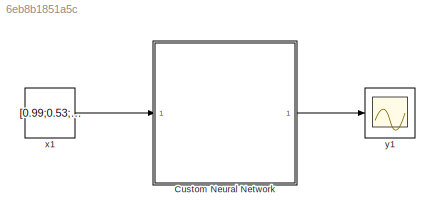
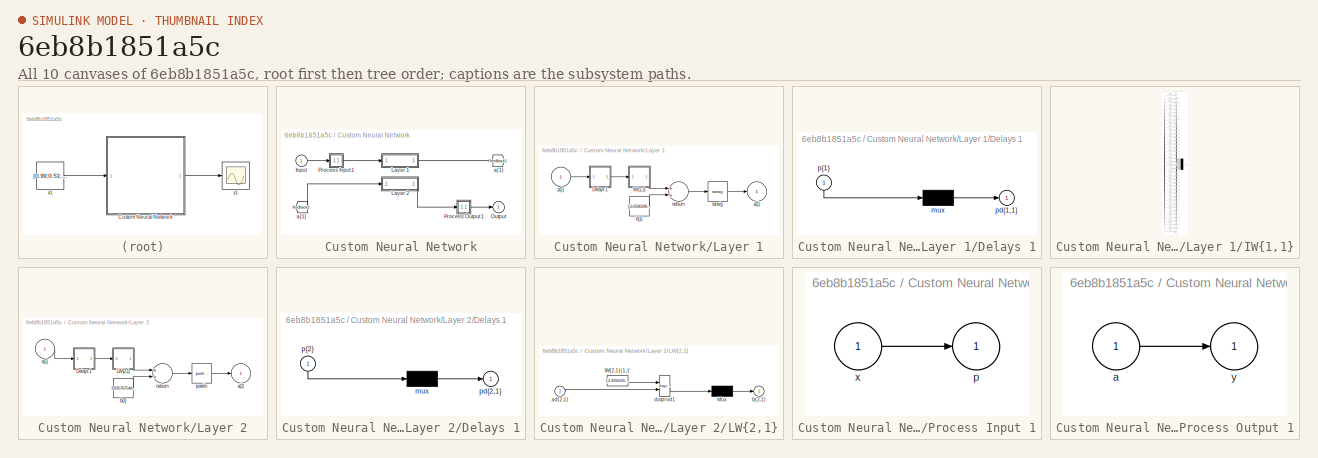
[diagram: thumbnail index - all 10 canvases of the model, root first then tree order]
MODEL slx_6eb8b1851a5c
KIND model
CONFIG AbsTol = auto
CONFIG EnableMultiTasking = off
CONFIG FixedStep = 0.1
CONFIG MaxStep = auto
CONFIG MinStep = auto
CONFIG RelTol = 1e-3
CONFIG SampleTimeConstraint = Unconstrained
CONFIG Solver = FixedStepAuto
CONFIG SolverName = FixedStepAuto
CONFIG StartTime = 0.0
CONFIG StopTime = 10.0
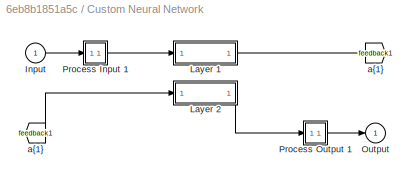
BLOCK [SubSystem] Custom Neural Network
  Ports = [1, 1]
  RequestExecContextInheritance = off
  Variant = off
BLOCK [From] Custom Neural Network/ a{1} 
  GotoTag = feedback1
BLOCK [Inport] Custom Neural Network/Input
  IconDisplay = Port number
  PortDimensions = 4
  SampleTime = 0.1
BLOCK [SubSystem] Custom Neural Network/Layer 1
  Ports = [1, 1]
  RequestExecContextInheritance = off
  Variant = off
BLOCK [SubSystem] Custom Neural Network/Layer 1/Delays 1
  Ports = [1, 1]
  RequestExecContextInheritance = off
  Variant = off
BLOCK [Mux] Custom Neural Network/Layer 1/Delays 1/mux
  Inputs = 1
  Ports = [1, 1]
BLOCK [Outport] Custom Neural Network/Layer 1/Delays 1/pd{1,1}
  IconDisplay = Port number
BLOCK [Inport] Custom Neural Network/Layer 1/Delays 1/p{1}
  IconDisplay = Port number
  PortDimensions = 4
  SampleTime = 0.1
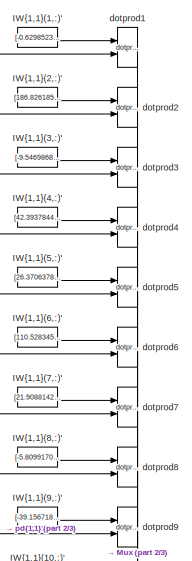
[diagram: Custom Neural Network/Layer 1/IW{1,1} - part 1/3, top center region]
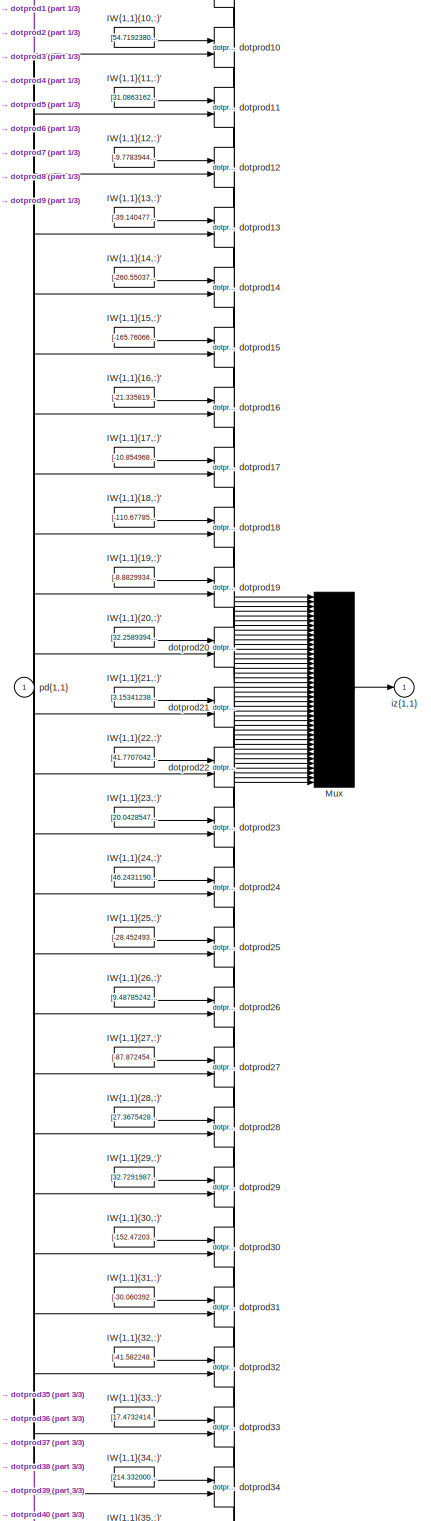
[diagram: Custom Neural Network/Layer 1/IW{1,1} - part 2/3, full width, middle band]
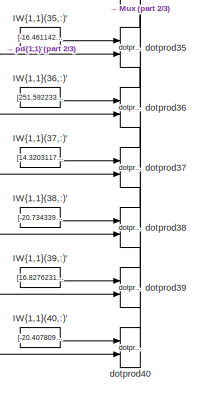
[diagram: Custom Neural Network/Layer 1/IW{1,1} - part 3/3, bottom center region]
BLOCK [SubSystem] Custom Neural Network/Layer 1/IW{1,1}
  Ports = [1, 1]
  RequestExecContextInheritance = off
  Variant = off
BLOCK [Constant] Custom Neural Network/Layer 1/IW{1,1}/IW{1,1}(1,:)'
  Value = [-0.629852348186918487016328072058968245983123779296875;45.29658200005228962936598691157996654510498046875;-25.699057271147754732965040602721273899078369140625;0.05584692999222586051732974965489120222628116607666015625]
BLOCK [Constant] Custom Neural Network/Layer 1/IW{1,1}/IW{1,1}(10,:)'
  Value = [54.719238067507177447623689658939838409423828125;-976.1035024694414232726558111608028411865234375;46.54047260972999566774888080544769763946533203125;24.2513484562311845138538046739995479583740234375]
BLOCK [Constant] Custom Neural Network/Layer 1/IW{1,1}/IW{1,1}(11,:)'
  Value = [31.086316247516581512400080100633203983306884765625;-37.22382365749347599148677545599639415740966796875;19.106692549619854304410182521678507328033447265625;-0.08724557630913039318887314266248722560703754425048828125]
BLOCK [Constant] Custom Neural Network/Layer 1/IW{1,1}/IW{1,1}(12,:)'
  Value = [-9.77839445317112421207639272324740886688232421875;26.2724407735658900264752446673810482025146484375;4.76160352546472864787574508227407932281494140625;0.0073084002268251659073516890430255443789064884185791015625]
BLOCK [Constant] Custom Neural Network/Layer 1/IW{1,1}/IW{1,1}(13,:)'
  Value = [-39.1404772762712269695839495398104190826416015625;-8.1803297408189745709705675835721194744110107421875;23.2907034776747110527139739133417606353759765625;0.02851175769769033474521080506747239269316196441650390625]
BLOCK [Constant] Custom Neural Network/Layer 1/IW{1,1}/IW{1,1}(14,:)'
  Value = [-260.55037751176814708742313086986541748046875;-499.98295048211804214588482864201068878173828125;-75.40494032499674403879907913506031036376953125;17.54539611034743984419037587940692901611328125]
BLOCK [Constant] Custom Neural Network/Layer 1/IW{1,1}/IW{1,1}(15,:)'
  Value = [-165.76066010027494712630868889391422271728515625;-205.7149120524145473609678447246551513671875;-7.42971334542427097602512731100432574748992919921875;-4.4738344005301957650999611360020935535430908203125]
BLOCK [Constant] Custom Neural Network/Layer 1/IW{1,1}/IW{1,1}(16,:)'
  Value = [-21.33581949550345058241873630322515964508056640625;14.0457364405426599063275716616772115230560302734375;-36.9395826025865261499347980134189128875732421875;0.07883772716823535253727328608874813653528690338134765625]
BLOCK [Constant] Custom Neural Network/Layer 1/IW{1,1}/IW{1,1}(17,:)'
  Value = [-10.8549684932247174629083019681274890899658203125;-25.9740773605059303008602000772953033447265625;36.89258665719984975339684751816093921661376953125;0.0195494742537429717910146820258887601085007190704345703125]
BLOCK [Constant] Custom Neural Network/Layer 1/IW{1,1}/IW{1,1}(18,:)'
  Value = [-110.6778555148316200984481838531792163848876953125;854.3561162140323403946240432560443878173828125;90.8973683914506409564637579023838043212890625;-2.816298773516325848476071769255213439464569091796875]
BLOCK [Constant] Custom Neural Network/Layer 1/IW{1,1}/IW{1,1}(19,:)'
  Value = [-8.8829934516064810168245458044111728668212890625;-33.566530201664733112920657731592655181884765625;-3.04666654827667304772376155597157776355743408203125;-0.135177453073702213970364027773030102252960205078125]
BLOCK [Constant] Custom Neural Network/Layer 1/IW{1,1}/IW{1,1}(2,:)'
  Value = [186.8261851433391029786434955894947052001953125;-298.69829731424437113673775456845760345458984375;73.7504248453553685749284341000020503997802734375;4.5892765747347112892384757287800312042236328125]
BLOCK [Constant] Custom Neural Network/Layer 1/IW{1,1}/IW{1,1}(20,:)'
  Value = [32.25893947173651810089722857810556888580322265625;36.7664101334751620697716134600341320037841796875;12.2860599518386859330121296807192265987396240234375;0.057154027121415561241146718884920119307935237884521484375]
BLOCK [Constant] Custom Neural Network/Layer 1/IW{1,1}/IW{1,1}(21,:)'
  Value = [3.15341238198225237709948487463407218456268310546875;-34.67690016862150770293737878091633319854736328125;14.0811973754771759814730103244073688983917236328125;-0.047941901507610414079341154547364567406475543975830078125]
BLOCK [Constant] Custom Neural Network/Layer 1/IW{1,1}/IW{1,1}(22,:)'
  Value = [41.77070420984301790667814202606678009033203125;20.755054800662744440842288895510137081146240234375;0.54115121005254451791444125774432905018329620361328125;0.077431661114533090195521936038858257234096527099609375]
BLOCK [Constant] Custom Neural Network/Layer 1/IW{1,1}/IW{1,1}(23,:)'
  Value = [20.042854714119041403819210245274007320404052734375;-39.896434288713322757757850922644138336181640625;6.02536653440303471285233172238804399967193603515625;-0.0721744404369498437912255894843838177621364593505859375]
BLOCK [Constant] Custom Neural Network/Layer 1/IW{1,1}/IW{1,1}(24,:)'
  Value = [46.24311903093212805515577201731503009796142578125;-18.167716131694451320299776853062212467193603515625;-22.76805788301579269727881182916462421417236328125;-0.041703172690547581080711125878224265761673450469970703125]
BLOCK [Constant] Custom Neural Network/Layer 1/IW{1,1}/IW{1,1}(25,:)'
  Value = [-28.452493098871240562175444210879504680633544921875;-39.7643465160674196567924809642136096954345703125;1.2793071231211570193408988416194915771484375;-0.0951308595129337908335998008624301292002201080322265625]
BLOCK [Constant] Custom Neural Network/Layer 1/IW{1,1}/IW{1,1}(26,:)'
  Value = [9.4878524250406304219040976022370159626007080078125;-8.868337043661664864657723228447139263153076171875;36.45407442769730010923012741841375827789306640625;0.09777354995456634390027517156340763904154300689697265625]
BLOCK [Constant] Custom Neural Network/Layer 1/IW{1,1}/IW{1,1}(27,:)'
  Value = [-87.872454734219928695893031544983386993408203125;28.74456551786160929395919083617627620697021484375;-141.0546976297749779405421577394008636474609375;-5.99578498808916560136594853247515857219696044921875]
BLOCK [Constant] Custom Neural Network/Layer 1/IW{1,1}/IW{1,1}(28,:)'
  Value = [27.36754280928375493431303766556084156036376953125;5.4229010249488087680447279126383364200592041015625;-44.87942190411609999500797130167484283447265625;-0.0887987148214237353993638635074603371322154998779296875]
BLOCK [Constant] Custom Neural Network/Layer 1/IW{1,1}/IW{1,1}(29,:)'
  Value = [32.72919871859021867521732929162681102752685546875;4.1407589008858298740278769400902092456817626953125;-37.76925766321875954645292949862778186798095703125;-0.02336710180513902612720045226524234749376773834228515625]
BLOCK [Constant] Custom Neural Network/Layer 1/IW{1,1}/IW{1,1}(3,:)'
  Value = [-9.546986891108250716797556378878653049468994140625;8.2641447806796097808046397403813898563385009765625;35.3030980812032595395066891796886920928955078125;0.1297078747648593155528118359143263660371303558349609375]
BLOCK [Constant] Custom Neural Network/Layer 1/IW{1,1}/IW{1,1}(30,:)'
  Value = [-152.4720316913325177665683440864086151123046875;-21.27243707408337769493300584144890308380126953125;-145.597703573626176876132376492023468017578125;-7.02840850012440920835388169507496058940887451171875]
BLOCK [Constant] Custom Neural Network/Layer 1/IW{1,1}/IW{1,1}(31,:)'
  Value = [-30.0603928748578113072653650306165218353271484375;16.836484682167142779007917852140963077545166015625;-5.79002107800427712192004037206061184406280517578125;0.03246418351834583215786977916650357656180858612060546875]
BLOCK [Constant] Custom Neural Network/Layer 1/IW{1,1}/IW{1,1}(32,:)'
  Value = [-41.58224853882247629144330858252942562103271484375;44.954077298239468518659123219549655914306640625;-0.93885945692047656496725949182291515171527862548828125;0.096057556854340642171763420265051536262035369873046875]
BLOCK [Constant] Custom Neural Network/Layer 1/IW{1,1}/IW{1,1}(33,:)'
  Value = [17.473241405774359691349673084914684295654296875;18.2454806470429531373156351037323474884033203125;-14.4942630929501898862099551479332149028778076171875;0.0440459317175901088337042210696381516754627227783203125]
BLOCK [Constant] Custom Neural Network/Layer 1/IW{1,1}/IW{1,1}(34,:)'
  Value = [214.332000309754818090368644334375858306884765625;-75.91262075174518031417392194271087646484375;132.84813810743844442185945808887481689453125;-5.294122412468194482926264754496514797210693359375]
BLOCK [Constant] Custom Neural Network/Layer 1/IW{1,1}/IW{1,1}(35,:)'
  Value = [-16.461142512404631332856297376565635204315185546875;-32.87454137539136667101047351025044918060302734375;17.588866960792440607974640442989766597747802734375;-0.00054134814073396124965709130805180393508635461330413818359375]
BLOCK [Constant] Custom Neural Network/Layer 1/IW{1,1}/IW{1,1}(36,:)'
  Value = [251.592233872888670020984136499464511871337890625;131.284087979236943510841228999197483062744140625;170.3682635492996269022114574909210205078125;-8.103308407059170548336624051444232463836669921875]
BLOCK [Constant] Custom Neural Network/Layer 1/IW{1,1}/IW{1,1}(37,:)'
  Value = [14.3203117577322842635112465359270572662353515625;-17.296595679176942184085419285111129283905029296875;35.42648888858797562306790496222674846649169921875;-0.06770266207771553912397877184048411436378955841064453125]
BLOCK [Constant] Custom Neural Network/Layer 1/IW{1,1}/IW{1,1}(38,:)'
  Value = [-20.734339869403445533180274651385843753814697265625;-23.074843976248274657336878590285778045654296875;15.6799057598324367290842928923666477203369140625;-0.01230762385719559072472240046636215993203222751617431640625]
BLOCK [Constant] Custom Neural Network/Layer 1/IW{1,1}/IW{1,1}(39,:)'
  Value = [16.82762313245719809629008523188531398773193359375;10.255739306955678813437771168537437915802001953125;-43.47548794711452302408360992558300495147705078125;0.0417039124664538574105421275817207060754299163818359375]
BLOCK [Constant] Custom Neural Network/Layer 1/IW{1,1}/IW{1,1}(4,:)'
  Value = [42.39378448554932532488237484358251094818115234375;-10.463895606344042477076072827912867069244384765625;-20.745054990878909251250661327503621578216552734375;-0.09906250695340727829840687945761601440608501434326171875]
BLOCK [Constant] Custom Neural Network/Layer 1/IW{1,1}/IW{1,1}(40,:)'
  Value = [-20.407809086202558290779052185826003551483154296875;-4.11877982214880322686667568632401525974273681640625;-38.50531111231358494251253432594239711761474609375;-0.0204436431283134302516746316769058466888964176177978515625]
BLOCK [Constant] Custom Neural Network/Layer 1/IW{1,1}/IW{1,1}(5,:)'
  Value = [26.370637867567477741204129415564239025115966796875;1.6169942102160483887729469643090851604938507080078125;5.231514661987187508884744602255523204803466796875;-0.024836300969492040857655723584684892557561397552490234375]
BLOCK [Constant] Custom Neural Network/Layer 1/IW{1,1}/IW{1,1}(6,:)'
  Value = [110.5283451774692053959370241500437259674072265625;417.88081619853852544110850431025028228759765625;-6.87679294793700268684233378735370934009552001953125;-2.43854981322127262188814711407758295536041259765625]
BLOCK [Constant] Custom Neural Network/Layer 1/IW{1,1}/IW{1,1}(7,:)'
  Value = [21.9088142168723294389565126039087772369384765625;-28.193431581696973609041378949768841266632080078125;41.4158139631084480924982926808297634124755859375;0.07262859243462160829807316986261866986751556396484375]
BLOCK [Constant] Custom Neural Network/Layer 1/IW{1,1}/IW{1,1}(8,:)'
  Value = [-5.8099170388617498161920593702234327793121337890625;37.96984783225667570150108076632022857666015625;33.88148592259343416799310944043099880218505859375;-0.004334336184150358421696136446144009823910892009735107421875]
BLOCK [Constant] Custom Neural Network/Layer 1/IW{1,1}/IW{1,1}(9,:)'
  Value = [-39.15671877753407414957109722308814525604248046875;-2.72713605031499373154701970634050667285919189453125;-30.403782442818535258766132756136357784271240234375;0.01278851303987849595544812331127104698680341243743896484375]
BLOCK [Mux] Custom Neural Network/Layer 1/IW{1,1}/Mux
  Inputs = 40
  Ports = [40, 1]
BLOCK [Reference] Custom Neural Network/Layer 1/IW{1,1}/dotprod1  REF=neural/Weight Functions/dotprod
  Ports = [2, 1]
  SourceBlock = neural/Weight Functions/dotprod
  SourceProductBaseCode = NN
  SourceProductName = Neural Network Toolbox
  SourceType = DOTPROD
BLOCK [Reference] Custom Neural Network/Layer 1/IW{1,1}/dotprod10  REF=neural/Weight Functions/dotprod
  Ports = [2, 1]
  SourceBlock = neural/Weight Functions/dotprod
  SourceProductBaseCode = NN
  SourceProductName = Neural Network Toolbox
  SourceType = DOTPROD
BLOCK [Reference] Custom Neural Network/Layer 1/IW{1,1}/dotprod11  REF=neural/Weight Functions/dotprod
  Ports = [2, 1]
  SourceBlock = neural/Weight Functions/dotprod
  SourceProductBaseCode = NN
  SourceProductName = Neural Network Toolbox
  SourceType = DOTPROD
BLOCK [Reference] Custom Neural Network/Layer 1/IW{1,1}/dotprod12  REF=neural/Weight Functions/dotprod
  Ports = [2, 1]
  SourceBlock = neural/Weight Functions/dotprod
  SourceProductBaseCode = NN
  SourceProductName = Neural Network Toolbox
  SourceType = DOTPROD
BLOCK [Reference] Custom Neural Network/Layer 1/IW{1,1}/dotprod13  REF=neural/Weight Functions/dotprod
  Ports = [2, 1]
  SourceBlock = neural/Weight Functions/dotprod
  SourceProductBaseCode = NN
  SourceProductName = Neural Network Toolbox
  SourceType = DOTPROD
BLOCK [Reference] Custom Neural Network/Layer 1/IW{1,1}/dotprod14  REF=neural/Weight Functions/dotprod
  Ports = [2, 1]
  SourceBlock = neural/Weight Functions/dotprod
  SourceProductBaseCode = NN
  SourceProductName = Neural Network Toolbox
  SourceType = DOTPROD
BLOCK [Reference] Custom Neural Network/Layer 1/IW{1,1}/dotprod15  REF=neural/Weight Functions/dotprod
  Ports = [2, 1]
  SourceBlock = neural/Weight Functions/dotprod
  SourceProductBaseCode = NN
  SourceProductName = Neural Network Toolbox
  SourceType = DOTPROD
BLOCK [Reference] Custom Neural Network/Layer 1/IW{1,1}/dotprod16  REF=neural/Weight Functions/dotprod
  Ports = [2, 1]
  SourceBlock = neural/Weight Functions/dotprod
  SourceProductBaseCode = NN
  SourceProductName = Neural Network Toolbox
  SourceType = DOTPROD
BLOCK [Reference] Custom Neural Network/Layer 1/IW{1,1}/dotprod17  REF=neural/Weight Functions/dotprod
  Ports = [2, 1]
  SourceBlock = neural/Weight Functions/dotprod
  SourceProductBaseCode = NN
  SourceProductName = Neural Network Toolbox
  SourceType = DOTPROD
BLOCK [Reference] Custom Neural Network/Layer 1/IW{1,1}/dotprod18  REF=neural/Weight Functions/dotprod
  Ports = [2, 1]
  SourceBlock = neural/Weight Functions/dotprod
  SourceProductBaseCode = NN
  SourceProductName = Neural Network Toolbox
  SourceType = DOTPROD
BLOCK [Reference] Custom Neural Network/Layer 1/IW{1,1}/dotprod19  REF=neural/Weight Functions/dotprod
  Ports = [2, 1]
  SourceBlock = neural/Weight Functions/dotprod
  SourceProductBaseCode = NN
  SourceProductName = Neural Network Toolbox
  SourceType = DOTPROD
BLOCK [Reference] Custom Neural Network/Layer 1/IW{1,1}/dotprod2  REF=neural/Weight Functions/dotprod
  Ports = [2, 1]
  SourceBlock = neural/Weight Functions/dotprod
  SourceProductBaseCode = NN
  SourceProductName = Neural Network Toolbox
  SourceType = DOTPROD
BLOCK [Reference] Custom Neural Network/Layer 1/IW{1,1}/dotprod20  REF=neural/Weight Functions/dotprod
  Ports = [2, 1]
  SourceBlock = neural/Weight Functions/dotprod
  SourceProductBaseCode = NN
  SourceProductName = Neural Network Toolbox
  SourceType = DOTPROD
BLOCK [Reference] Custom Neural Network/Layer 1/IW{1,1}/dotprod21  REF=neural/Weight Functions/dotprod
  Ports = [2, 1]
  SourceBlock = neural/Weight Functions/dotprod
  SourceProductBaseCode = NN
  SourceProductName = Neural Network Toolbox
  SourceType = DOTPROD
BLOCK [Reference] Custom Neural Network/Layer 1/IW{1,1}/dotprod22  REF=neural/Weight Functions/dotprod
  Ports = [2, 1]
  SourceBlock = neural/Weight Functions/dotprod
  SourceProductBaseCode = NN
  SourceProductName = Neural Network Toolbox
  SourceType = DOTPROD
BLOCK [Reference] Custom Neural Network/Layer 1/IW{1,1}/dotprod23  REF=neural/Weight Functions/dotprod
  Ports = [2, 1]
  SourceBlock = neural/Weight Functions/dotprod
  SourceProductBaseCode = NN
  SourceProductName = Neural Network Toolbox
  SourceType = DOTPROD
BLOCK [Reference] Custom Neural Network/Layer 1/IW{1,1}/dotprod24  REF=neural/Weight Functions/dotprod
  Ports = [2, 1]
  SourceBlock = neural/Weight Functions/dotprod
  SourceProductBaseCode = NN
  SourceProductName = Neural Network Toolbox
  SourceType = DOTPROD
BLOCK [Reference] Custom Neural Network/Layer 1/IW{1,1}/dotprod25  REF=neural/Weight Functions/dotprod
  Ports = [2, 1]
  SourceBlock = neural/Weight Functions/dotprod
  SourceProductBaseCode = NN
  SourceProductName = Neural Network Toolbox
  SourceType = DOTPROD
BLOCK [Reference] Custom Neural Network/Layer 1/IW{1,1}/dotprod26  REF=neural/Weight Functions/dotprod
  Ports = [2, 1]
  SourceBlock = neural/Weight Functions/dotprod
  SourceProductBaseCode = NN
  SourceProductName = Neural Network Toolbox
  SourceType = DOTPROD
BLOCK [Reference] Custom Neural Network/Layer 1/IW{1,1}/dotprod27  REF=neural/Weight Functions/dotprod
  Ports = [2, 1]
  SourceBlock = neural/Weight Functions/dotprod
  SourceProductBaseCode = NN
  SourceProductName = Neural Network Toolbox
  SourceType = DOTPROD
BLOCK [Reference] Custom Neural Network/Layer 1/IW{1,1}/dotprod28  REF=neural/Weight Functions/dotprod
  Ports = [2, 1]
  SourceBlock = neural/Weight Functions/dotprod
  SourceProductBaseCode = NN
  SourceProductName = Neural Network Toolbox
  SourceType = DOTPROD
BLOCK [Reference] Custom Neural Network/Layer 1/IW{1,1}/dotprod29  REF=neural/Weight Functions/dotprod
  Ports = [2, 1]
  SourceBlock = neural/Weight Functions/dotprod
  SourceProductBaseCode = NN
  SourceProductName = Neural Network Toolbox
  SourceType = DOTPROD
BLOCK [Reference] Custom Neural Network/Layer 1/IW{1,1}/dotprod3  REF=neural/Weight Functions/dotprod
  Ports = [2, 1]
  SourceBlock = neural/Weight Functions/dotprod
  SourceProductBaseCode = NN
  SourceProductName = Neural Network Toolbox
  SourceType = DOTPROD
BLOCK [Reference] Custom Neural Network/Layer 1/IW{1,1}/dotprod30  REF=neural/Weight Functions/dotprod
  Ports = [2, 1]
  SourceBlock = neural/Weight Functions/dotprod
  SourceProductBaseCode = NN
  SourceProductName = Neural Network Toolbox
  SourceType = DOTPROD
BLOCK [Reference] Custom Neural Network/Layer 1/IW{1,1}/dotprod31  REF=neural/Weight Functions/dotprod
  Ports = [2, 1]
  SourceBlock = neural/Weight Functions/dotprod
  SourceProductBaseCode = NN
  SourceProductName = Neural Network Toolbox
  SourceType = DOTPROD
BLOCK [Reference] Custom Neural Network/Layer 1/IW{1,1}/dotprod32  REF=neural/Weight Functions/dotprod
  Ports = [2, 1]
  SourceBlock = neural/Weight Functions/dotprod
  SourceProductBaseCode = NN
  SourceProductName = Neural Network Toolbox
  SourceType = DOTPROD
BLOCK [Reference] Custom Neural Network/Layer 1/IW{1,1}/dotprod33  REF=neural/Weight Functions/dotprod
  Ports = [2, 1]
  SourceBlock = neural/Weight Functions/dotprod
  SourceProductBaseCode = NN
  SourceProductName = Neural Network Toolbox
  SourceType = DOTPROD
BLOCK [Reference] Custom Neural Network/Layer 1/IW{1,1}/dotprod34  REF=neural/Weight Functions/dotprod
  Ports = [2, 1]
  SourceBlock = neural/Weight Functions/dotprod
  SourceProductBaseCode = NN
  SourceProductName = Neural Network Toolbox
  SourceType = DOTPROD
BLOCK [Reference] Custom Neural Network/Layer 1/IW{1,1}/dotprod35  REF=neural/Weight Functions/dotprod
  Ports = [2, 1]
  SourceBlock = neural/Weight Functions/dotprod
  SourceProductBaseCode = NN
  SourceProductName = Neural Network Toolbox
  SourceType = DOTPROD
BLOCK [Reference] Custom Neural Network/Layer 1/IW{1,1}/dotprod36  REF=neural/Weight Functions/dotprod
  Ports = [2, 1]
  SourceBlock = neural/Weight Functions/dotprod
  SourceProductBaseCode = NN
  SourceProductName = Neural Network Toolbox
  SourceType = DOTPROD
BLOCK [Reference] Custom Neural Network/Layer 1/IW{1,1}/dotprod37  REF=neural/Weight Functions/dotprod
  Ports = [2, 1]
  SourceBlock = neural/Weight Functions/dotprod
  SourceProductBaseCode = NN
  SourceProductName = Neural Network Toolbox
  SourceType = DOTPROD
BLOCK [Reference] Custom Neural Network/Layer 1/IW{1,1}/dotprod38  REF=neural/Weight Functions/dotprod
  Ports = [2, 1]
  SourceBlock = neural/Weight Functions/dotprod
  SourceProductBaseCode = NN
  SourceProductName = Neural Network Toolbox
  SourceType = DOTPROD
BLOCK [Reference] Custom Neural Network/Layer 1/IW{1,1}/dotprod39  REF=neural/Weight Functions/dotprod
  Ports = [2, 1]
  SourceBlock = neural/Weight Functions/dotprod
  SourceProductBaseCode = NN
  SourceProductName = Neural Network Toolbox
  SourceType = DOTPROD
BLOCK [Reference] Custom Neural Network/Layer 1/IW{1,1}/dotprod4  REF=neural/Weight Functions/dotprod
  Ports = [2, 1]
  SourceBlock = neural/Weight Functions/dotprod
  SourceProductBaseCode = NN
  SourceProductName = Neural Network Toolbox
  SourceType = DOTPROD
BLOCK [Reference] Custom Neural Network/Layer 1/IW{1,1}/dotprod40  REF=neural/Weight Functions/dotprod
  Ports = [2, 1]
  SourceBlock = neural/Weight Functions/dotprod
  SourceProductBaseCode = NN
  SourceProductName = Neural Network Toolbox
  SourceType = DOTPROD
BLOCK [Reference] Custom Neural Network/Layer 1/IW{1,1}/dotprod5  REF=neural/Weight Functions/dotprod
  Ports = [2, 1]
  SourceBlock = neural/Weight Functions/dotprod
  SourceProductBaseCode = NN
  SourceProductName = Neural Network Toolbox
  SourceType = DOTPROD
BLOCK [Reference] Custom Neural Network/Layer 1/IW{1,1}/dotprod6  REF=neural/Weight Functions/dotprod
  Ports = [2, 1]
  SourceBlock = neural/Weight Functions/dotprod
  SourceProductBaseCode = NN
  SourceProductName = Neural Network Toolbox
  SourceType = DOTPROD
BLOCK [Reference] Custom Neural Network/Layer 1/IW{1,1}/dotprod7  REF=neural/Weight Functions/dotprod
  Ports = [2, 1]
  SourceBlock = neural/Weight Functions/dotprod
  SourceProductBaseCode = NN
  SourceProductName = Neural Network Toolbox
  SourceType = DOTPROD
BLOCK [Reference] Custom Neural Network/Layer 1/IW{1,1}/dotprod8  REF=neural/Weight Functions/dotprod
  Ports = [2, 1]
  SourceBlock = neural/Weight Functions/dotprod
  SourceProductBaseCode = NN
  SourceProductName = Neural Network Toolbox
  SourceType = DOTPROD
BLOCK [Reference] Custom Neural Network/Layer 1/IW{1,1}/dotprod9  REF=neural/Weight Functions/dotprod
  Ports = [2, 1]
  SourceBlock = neural/Weight Functions/dotprod
  SourceProductBaseCode = NN
  SourceProductName = Neural Network Toolbox
  SourceType = DOTPROD
BLOCK [Outport] Custom Neural Network/Layer 1/IW{1,1}/iz{1,1}
  IconDisplay = Port number
BLOCK [Inport] Custom Neural Network/Layer 1/IW{1,1}/pd{1,1}
  IconDisplay = Port number
  PortDimensions = 4
  SampleTime = 0.1
BLOCK [Outport] Custom Neural Network/Layer 1/a{1}
  IconDisplay = Port number
  InitialOutput = [0;0;0;0;0;0;0;0;0;0;0;0;0;0;0;0;0;0;0;0;0;0;0;0;0;0;0;0;0;0;0;0;0;0;0;0;0;0;0;0]
BLOCK [Constant] Custom Neural Network/Layer 1/b{1}
  Value = [-3.059033689141189338300819144933484494686126708984375;-12.796854228007617848561494611203670501708984375;3.136178304820653739426461470429785549640655517578125;-3.8319812999351796634073252789676189422607421875;-0.804424117018461171113585805869661271572113037109375;-19.365588937340145747612041304819285869598388671875;-2.8788261380702362401962091098539531230926513671875;1.561681038455536629783182434...<+1755ch>
BLOCK [Sum] Custom Neural Network/Layer 1/netsum
  Inputs = 2
  Ports = [2, 1]
BLOCK [Inport] Custom Neural Network/Layer 1/p{1}
  IconDisplay = Port number
  PortDimensions = 4
  SampleTime = 0.1
BLOCK [Reference] Custom Neural Network/Layer 1/tansig  REF=neural/Transfer Functions/tansig
  Ports = [1, 1]
  SourceBlock = neural/Transfer Functions/tansig
  SourceProductBaseCode = NN
  SourceProductName = Neural Network Toolbox
  SourceType = TANSIG
BLOCK [SubSystem] Custom Neural Network/Layer 2
  Ports = [1, 1]
  RequestExecContextInheritance = off
  Variant = off
BLOCK [SubSystem] Custom Neural Network/Layer 2/Delays 1
  Ports = [1, 1]
  RequestExecContextInheritance = off
  Variant = off
BLOCK [Mux] Custom Neural Network/Layer 2/Delays 1/mux
  Inputs = 1
  Ports = [1, 1]
BLOCK [Outport] Custom Neural Network/Layer 2/Delays 1/pd{2,1}
  IconDisplay = Port number
BLOCK [Inport] Custom Neural Network/Layer 2/Delays 1/p{2}
  IconDisplay = Port number
  PortDimensions = 40
  SampleTime = 0.1
BLOCK [SubSystem] Custom Neural Network/Layer 2/LW{2,1}
  Ports = [1, 1]
  RequestExecContextInheritance = off
  Variant = off
BLOCK [Constant] Custom Neural Network/Layer 2/LW{2,1}/IW{2,1}(1,:)'
  Value = [-2.4094595476598943406543185119517147541046142578125;-0.032073643744827150248166702795060700736939907073974609375;0.74703101425237561361569760265410877764225006103515625;-2.032858680004199225521688276785425841808319091796875;-1.9675122348255855708742956267087720334529876708984375;0.8026171811257813981654862800496630370616912841796875;-1.30526834026529048315978798200376331806182861328125;-0.111602...<+1804ch>
BLOCK [Mux] Custom Neural Network/Layer 2/LW{2,1}/Mux
  Inputs = 1
  Ports = [1, 1]
BLOCK [Inport] Custom Neural Network/Layer 2/LW{2,1}/ad{2,1}
  IconDisplay = Port number
  PortDimensions = 40
  SampleTime = 0.1
BLOCK [Reference] Custom Neural Network/Layer 2/LW{2,1}/dotprod1  REF=neural/Weight Functions/dotprod
  Ports = [2, 1]
  SourceBlock = neural/Weight Functions/dotprod
  SourceProductBaseCode = NN
  SourceProductName = Neural Network Toolbox
  SourceType = DOTPROD
BLOCK [Outport] Custom Neural Network/Layer 2/LW{2,1}/lz{2,1}
  IconDisplay = Port number
BLOCK [Inport] Custom Neural Network/Layer 2/a{1} 
  IconDisplay = Port number
  PortDimensions = 40
  SampleTime = 0.1
BLOCK [Outport] Custom Neural Network/Layer 2/a{2}
  IconDisplay = Port number
  InitialOutput = 0
BLOCK [Constant] Custom Neural Network/Layer 2/b{2}
  Value = 1.835767544213503743577575733070261776447296142578125
BLOCK [Sum] Custom Neural Network/Layer 2/netsum
  Inputs = 2
  Ports = [2, 1]
BLOCK [Reference] Custom Neural Network/Layer 2/purelin  REF=neural/Transfer Functions/purelin
  Ports = [1, 1]
  SourceBlock = neural/Transfer Functions/purelin
  SourceProductBaseCode = NN
  SourceProductName = Neural Network Toolbox
  SourceType = PURELIN
BLOCK [Outport] Custom Neural Network/Output
  IconDisplay = Port number
  InitialOutput = 0
BLOCK [SubSystem] Custom Neural Network/Process Input 1
  Ports = [1, 1]
  RequestExecContextInheritance = off
  Variant = off
BLOCK [Outport] Custom Neural Network/Process Input 1/p
  IconDisplay = Port number
  PortDimensions = 4
  SampleTime = 0.1
BLOCK [Inport] Custom Neural Network/Process Input 1/x
  IconDisplay = Port number
  PortDimensions = 4
  SampleTime = 0.1
BLOCK [SubSystem] Custom Neural Network/Process Output 1
  Ports = [1, 1]
  RequestExecContextInheritance = off
  Variant = off
BLOCK [Inport] Custom Neural Network/Process Output 1/a
  IconDisplay = Port number
  PortDimensions = 1
  SampleTime = 0.1
BLOCK [Outport] Custom Neural Network/Process Output 1/y
  IconDisplay = Port number
  PortDimensions = 1
  SampleTime = 0.1
BLOCK [Goto] Custom Neural Network/a{1}
  GotoTag = feedback1
BLOCK [Constant] x1
  SampleTime = 0.1
  Value = [0.99;0.53;0.48;0.8]
BLOCK [Scope] y1
  NumInputPorts = 1
  Ports = [1]
LINE Custom Neural Network/ a{1} :1 -> Custom Neural Network/Layer 2:1
LINE Custom Neural Network/Input:1 -> Custom Neural Network/Process Input 1:1
LINE Custom Neural Network/Layer 1/Delays 1/mux:1 -> Custom Neural Network/Layer 1/Delays 1/pd{1,1}:1
LINE Custom Neural Network/Layer 1/Delays 1/p{1}:1 -> Custom Neural Network/Layer 1/Delays 1/mux:1
LINE Custom Neural Network/Layer 1/Delays 1:1 -> Custom Neural Network/Layer 1/IW{1,1}:1
LINE Custom Neural Network/Layer 1/IW{1,1}/IW{1,1}(1,:)':1 -> Custom Neural Network/Layer 1/IW{1,1}/dotprod1:1
LINE Custom Neural Network/Layer 1/IW{1,1}/IW{1,1}(10,:)':1 -> Custom Neural Network/Layer 1/IW{1,1}/dotprod10:1
LINE Custom Neural Network/Layer 1/IW{1,1}/IW{1,1}(11,:)':1 -> Custom Neural Network/Layer 1/IW{1,1}/dotprod11:1
LINE Custom Neural Network/Layer 1/IW{1,1}/IW{1,1}(12,:)':1 -> Custom Neural Network/Layer 1/IW{1,1}/dotprod12:1
LINE Custom Neural Network/Layer 1/IW{1,1}/IW{1,1}(13,:)':1 -> Custom Neural Network/Layer 1/IW{1,1}/dotprod13:1
LINE Custom Neural Network/Layer 1/IW{1,1}/IW{1,1}(14,:)':1 -> Custom Neural Network/Layer 1/IW{1,1}/dotprod14:1
LINE Custom Neural Network/Layer 1/IW{1,1}/IW{1,1}(15,:)':1 -> Custom Neural Network/Layer 1/IW{1,1}/dotprod15:1
LINE Custom Neural Network/Layer 1/IW{1,1}/IW{1,1}(16,:)':1 -> Custom Neural Network/Layer 1/IW{1,1}/dotprod16:1
LINE Custom Neural Network/Layer 1/IW{1,1}/IW{1,1}(17,:)':1 -> Custom Neural Network/Layer 1/IW{1,1}/dotprod17:1
LINE Custom Neural Network/Layer 1/IW{1,1}/IW{1,1}(18,:)':1 -> Custom Neural Network/Layer 1/IW{1,1}/dotprod18:1
LINE Custom Neural Network/Layer 1/IW{1,1}/IW{1,1}(19,:)':1 -> Custom Neural Network/Layer 1/IW{1,1}/dotprod19:1
LINE Custom Neural Network/Layer 1/IW{1,1}/IW{1,1}(2,:)':1 -> Custom Neural Network/Layer 1/IW{1,1}/dotprod2:1
LINE Custom Neural Network/Layer 1/IW{1,1}/IW{1,1}(20,:)':1 -> Custom Neural Network/Layer 1/IW{1,1}/dotprod20:1
LINE Custom Neural Network/Layer 1/IW{1,1}/IW{1,1}(21,:)':1 -> Custom Neural Network/Layer 1/IW{1,1}/dotprod21:1
LINE Custom Neural Network/Layer 1/IW{1,1}/IW{1,1}(22,:)':1 -> Custom Neural Network/Layer 1/IW{1,1}/dotprod22:1
LINE Custom Neural Network/Layer 1/IW{1,1}/IW{1,1}(23,:)':1 -> Custom Neural Network/Layer 1/IW{1,1}/dotprod23:1
LINE Custom Neural Network/Layer 1/IW{1,1}/IW{1,1}(24,:)':1 -> Custom Neural Network/Layer 1/IW{1,1}/dotprod24:1
LINE Custom Neural Network/Layer 1/IW{1,1}/IW{1,1}(25,:)':1 -> Custom Neural Network/Layer 1/IW{1,1}/dotprod25:1
LINE Custom Neural Network/Layer 1/IW{1,1}/IW{1,1}(26,:)':1 -> Custom Neural Network/Layer 1/IW{1,1}/dotprod26:1
LINE Custom Neural Network/Layer 1/IW{1,1}/IW{1,1}(27,:)':1 -> Custom Neural Network/Layer 1/IW{1,1}/dotprod27:1
LINE Custom Neural Network/Layer 1/IW{1,1}/IW{1,1}(28,:)':1 -> Custom Neural Network/Layer 1/IW{1,1}/dotprod28:1
LINE Custom Neural Network/Layer 1/IW{1,1}/IW{1,1}(29,:)':1 -> Custom Neural Network/Layer 1/IW{1,1}/dotprod29:1
LINE Custom Neural Network/Layer 1/IW{1,1}/IW{1,1}(3,:)':1 -> Custom Neural Network/Layer 1/IW{1,1}/dotprod3:1
LINE Custom Neural Network/Layer 1/IW{1,1}/IW{1,1}(30,:)':1 -> Custom Neural Network/Layer 1/IW{1,1}/dotprod30:1
LINE Custom Neural Network/Layer 1/IW{1,1}/IW{1,1}(31,:)':1 -> Custom Neural Network/Layer 1/IW{1,1}/dotprod31:1
LINE Custom Neural Network/Layer 1/IW{1,1}/IW{1,1}(32,:)':1 -> Custom Neural Network/Layer 1/IW{1,1}/dotprod32:1
LINE Custom Neural Network/Layer 1/IW{1,1}/IW{1,1}(33,:)':1 -> Custom Neural Network/Layer 1/IW{1,1}/dotprod33:1
LINE Custom Neural Network/Layer 1/IW{1,1}/IW{1,1}(34,:)':1 -> Custom Neural Network/Layer 1/IW{1,1}/dotprod34:1
LINE Custom Neural Network/Layer 1/IW{1,1}/IW{1,1}(35,:)':1 -> Custom Neural Network/Layer 1/IW{1,1}/dotprod35:1
LINE Custom Neural Network/Layer 1/IW{1,1}/IW{1,1}(36,:)':1 -> Custom Neural Network/Layer 1/IW{1,1}/dotprod36:1
LINE Custom Neural Network/Layer 1/IW{1,1}/IW{1,1}(37,:)':1 -> Custom Neural Network/Layer 1/IW{1,1}/dotprod37:1
LINE Custom Neural Network/Layer 1/IW{1,1}/IW{1,1}(38,:)':1 -> Custom Neural Network/Layer 1/IW{1,1}/dotprod38:1
LINE Custom Neural Network/Layer 1/IW{1,1}/IW{1,1}(39,:)':1 -> Custom Neural Network/Layer 1/IW{1,1}/dotprod39:1
LINE Custom Neural Network/Layer 1/IW{1,1}/IW{1,1}(4,:)':1 -> Custom Neural Network/Layer 1/IW{1,1}/dotprod4:1
LINE Custom Neural Network/Layer 1/IW{1,1}/IW{1,1}(40,:)':1 -> Custom Neural Network/Layer 1/IW{1,1}/dotprod40:1
LINE Custom Neural Network/Layer 1/IW{1,1}/IW{1,1}(5,:)':1 -> Custom Neural Network/Layer 1/IW{1,1}/dotprod5:1
LINE Custom Neural Network/Layer 1/IW{1,1}/IW{1,1}(6,:)':1 -> Custom Neural Network/Layer 1/IW{1,1}/dotprod6:1
LINE Custom Neural Network/Layer 1/IW{1,1}/IW{1,1}(7,:)':1 -> Custom Neural Network/Layer 1/IW{1,1}/dotprod7:1
LINE Custom Neural Network/Layer 1/IW{1,1}/IW{1,1}(8,:)':1 -> Custom Neural Network/Layer 1/IW{1,1}/dotprod8:1
LINE Custom Neural Network/Layer 1/IW{1,1}/IW{1,1}(9,:)':1 -> Custom Neural Network/Layer 1/IW{1,1}/dotprod9:1
LINE Custom Neural Network/Layer 1/IW{1,1}/Mux:1 -> Custom Neural Network/Layer 1/IW{1,1}/iz{1,1}:1
LINE Custom Neural Network/Layer 1/IW{1,1}/dotprod10:1 -> Custom Neural Network/Layer 1/IW{1,1}/Mux:10
LINE Custom Neural Network/Layer 1/IW{1,1}/dotprod11:1 -> Custom Neural Network/Layer 1/IW{1,1}/Mux:11
LINE Custom Neural Network/Layer 1/IW{1,1}/dotprod12:1 -> Custom Neural Network/Layer 1/IW{1,1}/Mux:12
LINE Custom Neural Network/Layer 1/IW{1,1}/dotprod13:1 -> Custom Neural Network/Layer 1/IW{1,1}/Mux:13
LINE Custom Neural Network/Layer 1/IW{1,1}/dotprod14:1 -> Custom Neural Network/Layer 1/IW{1,1}/Mux:14
LINE Custom Neural Network/Layer 1/IW{1,1}/dotprod15:1 -> Custom Neural Network/Layer 1/IW{1,1}/Mux:15
LINE Custom Neural Network/Layer 1/IW{1,1}/dotprod16:1 -> Custom Neural Network/Layer 1/IW{1,1}/Mux:16
LINE Custom Neural Network/Layer 1/IW{1,1}/dotprod17:1 -> Custom Neural Network/Layer 1/IW{1,1}/Mux:17
LINE Custom Neural Network/Layer 1/IW{1,1}/dotprod18:1 -> Custom Neural Network/Layer 1/IW{1,1}/Mux:18
LINE Custom Neural Network/Layer 1/IW{1,1}/dotprod19:1 -> Custom Neural Network/Layer 1/IW{1,1}/Mux:19
LINE Custom Neural Network/Layer 1/IW{1,1}/dotprod1:1 -> Custom Neural Network/Layer 1/IW{1,1}/Mux:1
LINE Custom Neural Network/Layer 1/IW{1,1}/dotprod20:1 -> Custom Neural Network/Layer 1/IW{1,1}/Mux:20
LINE Custom Neural Network/Layer 1/IW{1,1}/dotprod21:1 -> Custom Neural Network/Layer 1/IW{1,1}/Mux:21
LINE Custom Neural Network/Layer 1/IW{1,1}/dotprod22:1 -> Custom Neural Network/Layer 1/IW{1,1}/Mux:22
LINE Custom Neural Network/Layer 1/IW{1,1}/dotprod23:1 -> Custom Neural Network/Layer 1/IW{1,1}/Mux:23
LINE Custom Neural Network/Layer 1/IW{1,1}/dotprod24:1 -> Custom Neural Network/Layer 1/IW{1,1}/Mux:24
LINE Custom Neural Network/Layer 1/IW{1,1}/dotprod25:1 -> Custom Neural Network/Layer 1/IW{1,1}/Mux:25
LINE Custom Neural Network/Layer 1/IW{1,1}/dotprod26:1 -> Custom Neural Network/Layer 1/IW{1,1}/Mux:26
LINE Custom Neural Network/Layer 1/IW{1,1}/dotprod27:1 -> Custom Neural Network/Layer 1/IW{1,1}/Mux:27
LINE Custom Neural Network/Layer 1/IW{1,1}/dotprod28:1 -> Custom Neural Network/Layer 1/IW{1,1}/Mux:28
LINE Custom Neural Network/Layer 1/IW{1,1}/dotprod29:1 -> Custom Neural Network/Layer 1/IW{1,1}/Mux:29
LINE Custom Neural Network/Layer 1/IW{1,1}/dotprod2:1 -> Custom Neural Network/Layer 1/IW{1,1}/Mux:2
LINE Custom Neural Network/Layer 1/IW{1,1}/dotprod30:1 -> Custom Neural Network/Layer 1/IW{1,1}/Mux:30
LINE Custom Neural Network/Layer 1/IW{1,1}/dotprod31:1 -> Custom Neural Network/Layer 1/IW{1,1}/Mux:31
LINE Custom Neural Network/Layer 1/IW{1,1}/dotprod32:1 -> Custom Neural Network/Layer 1/IW{1,1}/Mux:32
LINE Custom Neural Network/Layer 1/IW{1,1}/dotprod33:1 -> Custom Neural Network/Layer 1/IW{1,1}/Mux:33
LINE Custom Neural Network/Layer 1/IW{1,1}/dotprod34:1 -> Custom Neural Network/Layer 1/IW{1,1}/Mux:34
LINE Custom Neural Network/Layer 1/IW{1,1}/dotprod35:1 -> Custom Neural Network/Layer 1/IW{1,1}/Mux:35
LINE Custom Neural Network/Layer 1/IW{1,1}/dotprod36:1 -> Custom Neural Network/Layer 1/IW{1,1}/Mux:36
LINE Custom Neural Network/Layer 1/IW{1,1}/dotprod37:1 -> Custom Neural Network/Layer 1/IW{1,1}/Mux:37
LINE Custom Neural Network/Layer 1/IW{1,1}/dotprod38:1 -> Custom Neural Network/Layer 1/IW{1,1}/Mux:38
LINE Custom Neural Network/Layer 1/IW{1,1}/dotprod39:1 -> Custom Neural Network/Layer 1/IW{1,1}/Mux:39
LINE Custom Neural Network/Layer 1/IW{1,1}/dotprod3:1 -> Custom Neural Network/Layer 1/IW{1,1}/Mux:3
LINE Custom Neural Network/Layer 1/IW{1,1}/dotprod40:1 -> Custom Neural Network/Layer 1/IW{1,1}/Mux:40
LINE Custom Neural Network/Layer 1/IW{1,1}/dotprod4:1 -> Custom Neural Network/Layer 1/IW{1,1}/Mux:4
LINE Custom Neural Network/Layer 1/IW{1,1}/dotprod5:1 -> Custom Neural Network/Layer 1/IW{1,1}/Mux:5
LINE Custom Neural Network/Layer 1/IW{1,1}/dotprod6:1 -> Custom Neural Network/Layer 1/IW{1,1}/Mux:6
LINE Custom Neural Network/Layer 1/IW{1,1}/dotprod7:1 -> Custom Neural Network/Layer 1/IW{1,1}/Mux:7
LINE Custom Neural Network/Layer 1/IW{1,1}/dotprod8:1 -> Custom Neural Network/Layer 1/IW{1,1}/Mux:8
LINE Custom Neural Network/Layer 1/IW{1,1}/dotprod9:1 -> Custom Neural Network/Layer 1/IW{1,1}/Mux:9
NET Custom Neural Network/Layer 1/IW{1,1}/pd{1,1}:1 -> Custom Neural Network/Layer 1/IW{1,1}/dotprod10:2, Custom Neural Network/Layer 1/IW{1,1}/dotprod11:2, Custom Neural Network/Layer 1/IW{1,1}/dotprod12:2, Custom Neural Network/Layer 1/IW{1,1}/dotprod13:2, Custom Neural Network/Layer 1/IW{1,1}/dotprod14:2, Custom Neural Network/Layer 1/IW{1,1}/dotprod15:2, Custom Neural Network/Layer 1/IW{1,1}/dotprod16:2, Custom Neural Network/Layer 1/IW{1,1}/dotprod17:2, Custom Neural Network/Layer 1/IW{1,1}/dotprod18:2, Custom Neural Network/Layer 1/IW{1,1}/dotprod19:2, Custom Neural Network/Layer 1/IW{1,1}/dotprod1:2, Custom Neural Network/Layer 1/IW{1,1}/dotprod20:2, Custom Neural Network/Layer 1/IW{1,1}/dotprod21:2, Custom Neural Network/Layer 1/IW{1,1}/dotprod22:2, Custom Neural Network/Layer 1/IW{1,1}/dotprod23:2, Custom Neural Network/Layer 1/IW{1,1}/dotprod24:2, Custom Neural Network/Layer 1/IW{1,1}/dotprod25:2, Custom Neural Network/Layer 1/IW{1,1}/dotprod26:2, Custom Neural Network/Layer 1/IW{1,1}/dotprod27:2, Custom Neural Network/Layer 1/IW{1,1}/dotprod28:2, Custom Neural Network/Layer 1/IW{1,1}/dotprod29:2, Custom Neural Network/Layer 1/IW{1,1}/dotprod2:2, Custom Neural Network/Layer 1/IW{1,1}/dotprod30:2, Custom Neural Network/Layer 1/IW{1,1}/dotprod31:2, Custom Neural Network/Layer 1/IW{1,1}/dotprod32:2, Custom Neural Network/Layer 1/IW{1,1}/dotprod33:2, Custom Neural Network/Layer 1/IW{1,1}/dotprod34:2, Custom Neural Network/Layer 1/IW{1,1}/dotprod35:2, Custom Neural Network/Layer 1/IW{1,1}/dotprod36:2, Custom Neural Network/Layer 1/IW{1,1}/dotprod37:2, Custom Neural Network/Layer 1/IW{1,1}/dotprod38:2, Custom Neural Network/Layer 1/IW{1,1}/dotprod39:2, Custom Neural Network/Layer 1/IW{1,1}/dotprod3:2, Custom Neural Network/Layer 1/IW{1,1}/dotprod40:2, Custom Neural Network/Layer 1/IW{1,1}/dotprod4:2, Custom Neural Network/Layer 1/IW{1,1}/dotprod5:2, Custom Neural Network/Layer 1/IW{1,1}/dotprod6:2, Custom Neural Network/Layer 1/IW{1,1}/dotprod7:2, Custom Neural Network/Layer 1/IW{1,1}/dotprod8:2, Custom Neural Network/Layer 1/IW{1,1}/dotprod9:2
LINE Custom Neural Network/Layer 1/IW{1,1}:1 -> Custom Neural Network/Layer 1/netsum:1
LINE Custom Neural Network/Layer 1/b{1}:1 -> Custom Neural Network/Layer 1/netsum:2
LINE Custom Neural Network/Layer 1/netsum:1 -> Custom Neural Network/Layer 1/tansig:1
LINE Custom Neural Network/Layer 1/p{1}:1 -> Custom Neural Network/Layer 1/Delays 1:1
LINE Custom Neural Network/Layer 1/tansig:1 -> Custom Neural Network/Layer 1/a{1}:1
LINE Custom Neural Network/Layer 1:1 -> Custom Neural Network/a{1}:1
LINE Custom Neural Network/Layer 2/Delays 1/mux:1 -> Custom Neural Network/Layer 2/Delays 1/pd{2,1}:1
LINE Custom Neural Network/Layer 2/Delays 1/p{2}:1 -> Custom Neural Network/Layer 2/Delays 1/mux:1
LINE Custom Neural Network/Layer 2/Delays 1:1 -> Custom Neural Network/Layer 2/LW{2,1}:1
LINE Custom Neural Network/Layer 2/LW{2,1}/IW{2,1}(1,:)':1 -> Custom Neural Network/Layer 2/LW{2,1}/dotprod1:1
LINE Custom Neural Network/Layer 2/LW{2,1}/Mux:1 -> Custom Neural Network/Layer 2/LW{2,1}/lz{2,1}:1
LINE Custom Neural Network/Layer 2/LW{2,1}/ad{2,1}:1 -> Custom Neural Network/Layer 2/LW{2,1}/dotprod1:2
LINE Custom Neural Network/Layer 2/LW{2,1}/dotprod1:1 -> Custom Neural Network/Layer 2/LW{2,1}/Mux:1
LINE Custom Neural Network/Layer 2/LW{2,1}:1 -> Custom Neural Network/Layer 2/netsum:1
LINE Custom Neural Network/Layer 2/a{1} :1 -> Custom Neural Network/Layer 2/Delays 1:1
LINE Custom Neural Network/Layer 2/b{2}:1 -> Custom Neural Network/Layer 2/netsum:2
LINE Custom Neural Network/Layer 2/netsum:1 -> Custom Neural Network/Layer 2/purelin:1
LINE Custom Neural Network/Layer 2/purelin:1 -> Custom Neural Network/Layer 2/a{2}:1
LINE Custom Neural Network/Layer 2:1 -> Custom Neural Network/Process Output 1:1
LINE Custom Neural Network/Process Input 1/x:1 -> Custom Neural Network/Process Input 1/p:1
LINE Custom Neural Network/Process Input 1:1 -> Custom Neural Network/Layer 1:1
LINE Custom Neural Network/Process Output 1/a:1 -> Custom Neural Network/Process Output 1/y:1
LINE Custom Neural Network/Process Output 1:1 -> Custom Neural Network/Output:1
LINE Custom Neural Network:1 -> y1:1
LINE x1:1 -> Custom Neural Network:1
note: NET lines group one-source signal fan-out (src -> all destinations, sorted); 1:1 wires keep LINE
